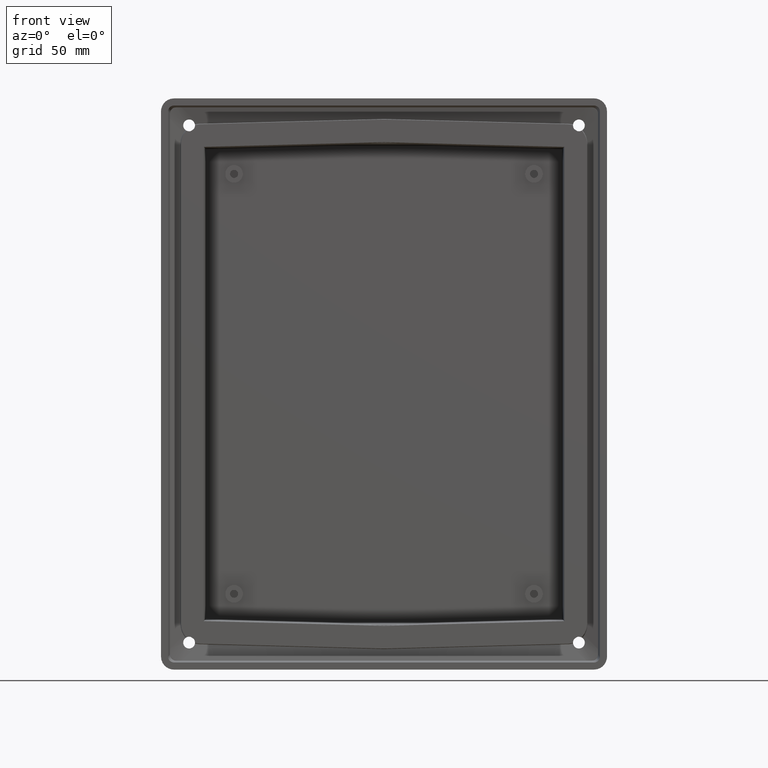
[diagram: clean part render]
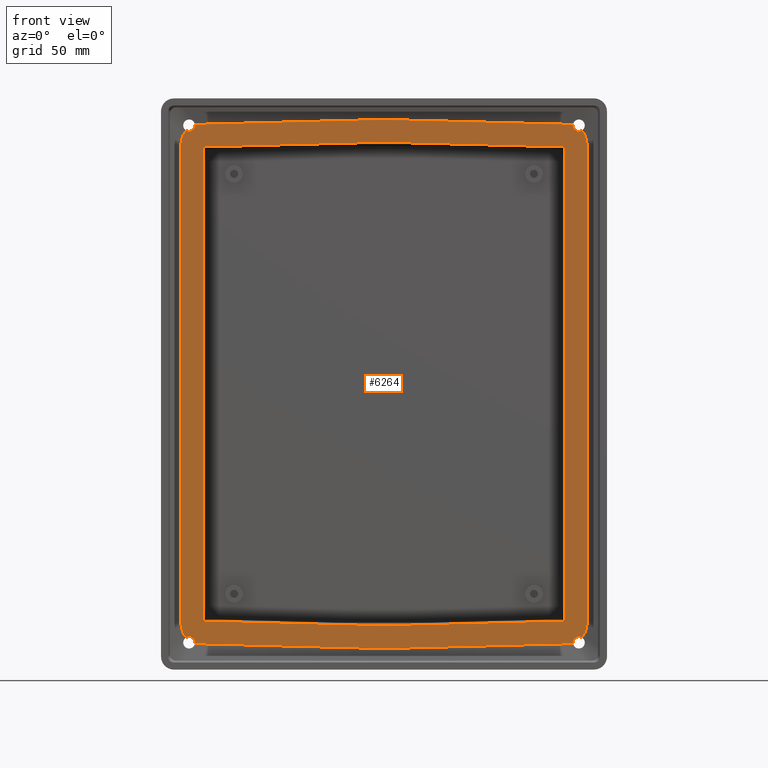
[diagram: same view with one face highlighted and labeled with its STEP entity id]
A machine part, front view. The second image highlights one B-rep face of the part: STEP entity #6264.
In plain terms, the highlighted planar face has unit normal (0, -1, 0).
Its self-contained STEP definition (entity closure, byte-faithful):
#8 = ORIENTED_EDGE ( 'NONE', *, *, #4781, .F. ) ;
#10 = VERTEX_POINT ( 'NONE', #6269 ) ;
#31 = AXIS2_PLACEMENT_3D ( 'NONE', #2380, #2402, #5780 ) ;
#42 = VERTEX_POINT ( 'NONE', #3843 ) ;
#48 = CIRCLE ( 'NONE', #3390, 2.500000000000002200 ) ;
#59 = CIRCLE ( 'NONE', #6068, 0.3000000000000085900 ) ;
#63 = CIRCLE ( 'NONE', #2081, 2.499999999999988500 ) ;
#66 = DIRECTION ( 'NONE',  ( 0.8191520442889851400, 0.0000000000000000000, 0.5735764363510554900 ) ) ;
#77 = EDGE_CURVE ( 'NONE', #6325, #4800, #5679, .T. ) ;
#117 = CARTESIAN_POINT ( 'NONE',  ( -77.77243026756629300, 3.000000000000000000, 109.9732028361552200 ) ) ;
#126 = EDGE_CURVE ( 'NONE', #6217, #339, #325, .T. ) ;
#133 = CIRCLE ( 'NONE', #4534, 2.499999999999988500 ) ;
#135 = CARTESIAN_POINT ( 'NONE',  ( 82.51926223426441700, 2.999999999999999100, -109.4992622342643400 ) ) ;
#149 = VERTEX_POINT ( 'NONE', #3959 ) ;
#150 =( BOUNDED_CURVE ( )  B_SPLINE_CURVE ( 3, ( #658, #3648, #5556, #718 ),
 .UNSPECIFIED., .F., .T. ) 
 B_SPLINE_CURVE_WITH_KNOTS ( ( 4, 4 ),
 ( 3.165045893626587900, 3.913307588947645000 ),
 .UNSPECIFIED. ) 
 CURVE ( )  GEOMETRIC_REPRESENTATION_ITEM ( )  RATIONAL_B_SPLINE_CURVE ( ( 1.000000000000000000, 0.9538837446887115100, 0.9538837446887115100, 1.000000000000000000 ) ) 
 REPRESENTATION_ITEM ( '' )  );
#154 = EDGE_CURVE ( 'NONE', #5908, #6217, #190, .T. ) ;
#171 = EDGE_CURVE ( 'NONE', #1887, #1907, #4381, .T. ) ;
#190 = CIRCLE ( 'NONE', #1356, 2.500000000000002200 ) ;
#191 = VECTOR ( 'NONE', #5643, 1000.000000000000100 ) ;
#207 = VECTOR ( 'NONE', #452, 1000.000000000000100 ) ;
#223 = ORIENTED_EDGE ( 'NONE', *, *, #77, .F. ) ;
#242 = DIRECTION ( 'NONE',  ( 0.0000000000000000000, -1.000000000000000000, 0.0000000000000000000 ) ) ;
#248 = ORIENTED_EDGE ( 'NONE', *, *, #1751, .F. ) ;
#282 = EDGE_CURVE ( 'NONE', #42, #845, #150, .T. ) ;
#294 = CARTESIAN_POINT ( 'NONE',  ( -83.70232339227030100, 3.000000000000000000, 107.2969075179623000 ) ) ;
#307 = CARTESIAN_POINT ( 'NONE',  ( -85.94756079757348700, 2.999999999999999100, -103.7279768682518700 ) ) ;
#323 = VERTEX_POINT ( 'NONE', #6074 ) ;
#325 = CIRCLE ( 'NONE', #3450, 2.500000000000002200 ) ;
#339 = VERTEX_POINT ( 'NONE', #6055 ) ;
#389 = ORIENTED_EDGE ( 'NONE', *, *, #4204, .T. ) ;
#452 = DIRECTION ( 'NONE',  ( -0.9996573249755572600, -0.0000000000000000000, 0.02617694830787313900 ) ) ;
#458 = CARTESIAN_POINT ( 'NONE',  ( -85.94756079757347300, 3.000000000000000000, 101.5811966059138500 ) ) ;
#501 = DIRECTION ( 'NONE',  ( 0.0000000000000000000, 0.0000000000000000000, -1.000000000000000000 ) ) ;
#506 = LINE ( 'NONE', #6321, #3793 ) ;
#517 = EDGE_CURVE ( 'NONE', #5804, #10, #4931, .T. ) ;
#522 = CARTESIAN_POINT ( 'NONE',  ( -0.002742357533569903900, 3.000000000000000000, -102.3969987167160700 ) ) ;
#528 = ORIENTED_EDGE ( 'NONE', *, *, #4667, .F. ) ;
#538 = DIRECTION ( 'NONE',  ( -0.9996573249755572600, -0.0000000000000000000, -0.02617694830787313900 ) ) ;
#594 = ORIENTED_EDGE ( 'NONE', *, *, #979, .F. ) ;
#607 = CARTESIAN_POINT ( 'NONE',  ( 1.387778780781445700E-014, 3.000000000000000000, 112.0097455953867600 ) ) ;
#618 = VERTEX_POINT ( 'NONE', #1556 ) ;
#643 = EDGE_CURVE ( 'NONE', #864, #3248, #1102, .T. ) ;
#647 = VERTEX_POINT ( 'NONE', #3210 ) ;
#649 = CARTESIAN_POINT ( 'NONE',  ( 85.94756079757348700, 3.000000000000000000, 103.7279768682518400 ) ) ;
#658 = CARTESIAN_POINT ( 'NONE',  ( 83.70232339227030100, 3.000000000000000000, -107.2969075179623100 ) ) ;
#683 = CARTESIAN_POINT ( 'NONE',  ( -76.44005613156466000, 3.000000000000000000, 100.3952735909513800 ) ) ;
#703 = VECTOR ( 'NONE', #5968, 1000.000000000000100 ) ;
#718 = CARTESIAN_POINT ( 'NONE',  ( 85.94756079757347300, 3.000000000000000000, -101.5811966059138500 ) ) ;
#721 = CARTESIAN_POINT ( 'NONE',  ( -85.94756079757347300, 3.000000000000000000, 101.5811966059138500 ) ) ;
#735 = CARTESIAN_POINT ( 'NONE',  ( 85.94756079757347300, 3.000000000000000000, -100.5000000000000000 ) ) ;
#739 = DIRECTION ( 'NONE',  ( -0.0000000000000000000, 1.000000000000000000, -0.0000000000000000000 ) ) ;
#752 = CARTESIAN_POINT ( 'NONE',  ( 87.44279848909823700, 3.000000000000000000, -111.2157255801385100 ) ) ;
#764 = ORIENTED_EDGE ( 'NONE', *, *, #3582, .F. ) ;
#790 = VERTEX_POINT ( 'NONE', #5213 ) ;
#801 = CARTESIAN_POINT ( 'NONE',  ( 76.33803618062299300, 3.000000000000000000, -100.5000000000000000 ) ) ;
#805 = CARTESIAN_POINT ( 'NONE',  ( -85.16296574330026200, 2.999999999999999100, -105.7253240096528100 ) ) ;
#806 = LINE ( 'NONE', #4315, #4726 ) ;
#812 = CARTESIAN_POINT ( 'NONE',  ( -85.16296574330026200, 3.000000000000000000, 105.7253240096528400 ) ) ;
#815 = EDGE_CURVE ( 'NONE', #1403, #5666, #4465, .T. ) ;
#834 = CARTESIAN_POINT ( 'NONE',  ( 77.77243026756626400, 3.000000000000000000, -109.9732028361552200 ) ) ;
#845 = VERTEX_POINT ( 'NONE', #3811 ) ;
#864 = VERTEX_POINT ( 'NONE', #2846 ) ;
#875 = CARTESIAN_POINT ( 'NONE',  ( -77.77243026756629300, 3.000000000000000000, 109.9732028361552200 ) ) ;
#884 = AXIS2_PLACEMENT_3D ( 'NONE', #3376, #4289, #5711 ) ;
#926 = DIRECTION ( 'NONE',  ( 0.0000000000000000000, 0.0000000000000000000, -1.000000000000000000 ) ) ;
#933 = VERTEX_POINT ( 'NONE', #965 ) ;
#936 = ORIENTED_EDGE ( 'NONE', *, *, #154, .F. ) ;
#955 = CARTESIAN_POINT ( 'NONE',  ( -82.51926223426441700, 2.999999999999999100, 109.4992622342643400 ) ) ;
#965 = CARTESIAN_POINT ( 'NONE',  ( -1.382357769919018200E-014, 3.000000000000000900, -112.0097455953867600 ) ) ;
#967 = DIRECTION ( 'NONE',  ( 0.0000000000000000000, -1.000000000000000000, 0.0000000000000000000 ) ) ;
#979 = EDGE_CURVE ( 'NONE', #647, #3030, #5736, .T. ) ;
#991 = EDGE_CURVE ( 'NONE', #10, #618, #1782, .T. ) ;
#994 = CARTESIAN_POINT ( 'NONE',  ( 82.51926223426441700, 2.999999999999999100, -106.9992622342643400 ) ) ;
#1010 = CARTESIAN_POINT ( 'NONE',  ( 83.70232339227028700, 3.000000000000001800, 107.2969075179623000 ) ) ;
#1018 = CARTESIAN_POINT ( 'NONE',  ( -82.51926223426441700, 2.999999999999999100, 109.4992622342643400 ) ) ;
#1019 = CARTESIAN_POINT ( 'NONE',  ( 80.02150429958035700, 3.000000000000000900, -109.6051173225820200 ) ) ;
#1071 = EDGE_CURVE ( 'NONE', #1478, #4800, #4614, .T. ) ;
#1084 =( BOUNDED_CURVE ( )  B_SPLINE_CURVE ( 3, ( #834, #4843, #2998, #1019 ),
 .UNSPECIFIED., .F., .F. ) 
 B_SPLINE_CURVE_WITH_KNOTS ( ( 4, 4 ),
 ( 2.369877718231939000, 2.641911150270310800 ),
 .UNSPECIFIED. ) 
 CURVE ( )  GEOMETRIC_REPRESENTATION_ITEM ( )  RATIONAL_B_SPLINE_CURVE ( ( 1.000000000000000000, 0.9938426526332709800, 0.9938426526332709800, 1.000000000000000000 ) ) 
 REPRESENTATION_ITEM ( '' )  );
#1096 = DIRECTION ( 'NONE',  ( 0.0000000000000000000, -1.000000000000000000, 0.0000000000000000000 ) ) ;
#1102 = LINE ( 'NONE', #2612, #4693 ) ;
#1110 = VERTEX_POINT ( 'NONE', #5489 ) ;
#1125 = LINE ( 'NONE', #522, #5765 ) ;
#1142 = CARTESIAN_POINT ( 'NONE',  ( 77.77243026756626400, 3.000000000000000000, -109.9732028361552200 ) ) ;
#1161 = EDGE_CURVE ( 'NONE', #4203, #2621, #5289, .T. ) ;
#1163 = ORIENTED_EDGE ( 'NONE', *, *, #2419, .T. ) ;
#1183 = CARTESIAN_POINT ( 'NONE',  ( -79.29099746779371600, 2.999999999999998700, -109.8297354107430700 ) ) ;
#1206 = LINE ( 'NONE', #6182, #2202 ) ;
#1220 = DIRECTION ( 'NONE',  ( -0.0000000000000000000, 1.000000000000000000, -0.0000000000000000000 ) ) ;
#1236 = CARTESIAN_POINT ( 'NONE',  ( -83.70232339227030100, 2.999999999999999100, -107.2969075179623100 ) ) ;
#1240 = DIRECTION ( 'NONE',  ( 0.0000000000000000000, 0.0000000000000000000, -1.000000000000000000 ) ) ;
#1276 = EDGE_CURVE ( 'NONE', #323, #3099, #5548, .T. ) ;
#1297 = CARTESIAN_POINT ( 'NONE',  ( -82.51926223426441700, 2.999999999999999100, -106.9992622342643200 ) ) ;
#1302 = CARTESIAN_POINT ( 'NONE',  ( -80.60552486977377400, 2.999999999999999100, 107.9094165500067500 ) ) ;
#1308 = CARTESIAN_POINT ( 'NONE',  ( -83.70232339227030100, 2.999999999999999100, -107.2969075179623100 ) ) ;
#1316 = ORIENTED_EDGE ( 'NONE', *, *, #282, .T. ) ;
#1356 = AXIS2_PLACEMENT_3D ( 'NONE', #955, #2004, #2503 ) ;
#1363 = DIRECTION ( 'NONE',  ( 0.0000000000000000000, 0.0000000000000000000, -1.000000000000000000 ) ) ;
#1372 = DIRECTION ( 'NONE',  ( 0.0000000000000000000, 0.0000000000000000000, -1.000000000000000000 ) ) ;
#1379 = DIRECTION ( 'NONE',  ( 0.0000000000000000000, 0.0000000000000000000, -1.000000000000000000 ) ) ;
#1389 = EDGE_CURVE ( 'NONE', #4438, #864, #4333, .T. ) ;
#1403 = VERTEX_POINT ( 'NONE', #3682 ) ;
#1411 = ORIENTED_EDGE ( 'NONE', *, *, #1389, .T. ) ;
#1417 = ORIENTED_EDGE ( 'NONE', *, *, #4468, .T. ) ;
#1428 = CARTESIAN_POINT ( 'NONE',  ( 82.51926223426441700, 2.999999999999999100, 109.4992622342643400 ) ) ;
#1434 = CARTESIAN_POINT ( 'NONE',  ( -85.94756079757347300, 3.000000000000000000, -101.5811966059138000 ) ) ;
#1435 = DIRECTION ( 'NONE',  ( 0.0000000000000000000, -1.000000000000000000, 0.0000000000000000000 ) ) ;
#1454 = AXIS2_PLACEMENT_3D ( 'NONE', #2796, #6187, #926 ) ;
#1461 = CARTESIAN_POINT ( 'NONE',  ( -80.77759780067910400, 2.999999999999999100, -108.1551621632934500 ) ) ;
#1478 = VERTEX_POINT ( 'NONE', #875 ) ;
#1504 = EDGE_CURVE ( 'NONE', #1800, #4746, #806, .T. ) ;
#1555 = CIRCLE ( 'NONE', #3328, 0.2999999999999947200 ) ;
#1556 = CARTESIAN_POINT ( 'NONE',  ( -80.54009810519019700, 2.999999999999999100, -107.9718757899792500 ) ) ;
#1562 = EDGE_CURVE ( 'NONE', #2621, #4599, #3345, .T. ) ;
#1576 = ORIENTED_EDGE ( 'NONE', *, *, #5483, .T. ) ;
#1581 = DIRECTION ( 'NONE',  ( 0.8191520442889885800, 0.0000000000000000000, 0.5735764363510507100 ) ) ;
#1610 = CARTESIAN_POINT ( 'NONE',  ( -80.02150429958035700, 2.999999999999595400, -109.6051173225820200 ) ) ;
#1638 = DIRECTION ( 'NONE',  ( -0.0000000000000000000, 1.000000000000000000, -0.0000000000000000000 ) ) ;
#1664 = DIRECTION ( 'NONE',  ( 9.251858538543134400E-014, 0.0000000000000000000, -1.000000000000000000 ) ) ;
#1685 = ORIENTED_EDGE ( 'NONE', *, *, #6202, .T. ) ;
#1751 = EDGE_CURVE ( 'NONE', #323, #6037, #133, .T. ) ;
#1758 =( BOUNDED_CURVE ( )  B_SPLINE_CURVE ( 3, ( #5650, #649, #4595, #6083 ),
 .UNSPECIFIED., .F., .F. ) 
 B_SPLINE_CURVE_WITH_KNOTS ( ( 4, 4 ),
 ( 2.369877718231934600, 3.118139413552999200 ),
 .UNSPECIFIED. ) 
 CURVE ( )  GEOMETRIC_REPRESENTATION_ITEM ( )  RATIONAL_B_SPLINE_CURVE ( ( 1.000000000000000000, 0.9538837446887105100, 0.9538837446887105100, 1.000000000000000000 ) ) 
 REPRESENTATION_ITEM ( '' )  );
#1782 = CIRCLE ( 'NONE', #3279, 0.3000000000000085900 ) ;
#1797 = EDGE_CURVE ( 'NONE', #339, #647, #3496, .T. ) ;
#1800 = VERTEX_POINT ( 'NONE', #2886 ) ;
#1829 = DIRECTION ( 'NONE',  ( 0.9996573249755572600, -0.0000000000000000000, -0.02617694830787313900 ) ) ;
#1853 = ORIENTED_EDGE ( 'NONE', *, *, #1562, .F. ) ;
#1866 = VECTOR ( 'NONE', #3130, 1000.000000000000100 ) ;
#1871 = ORIENTED_EDGE ( 'NONE', *, *, #3801, .F. ) ;
#1887 = VERTEX_POINT ( 'NONE', #1434 ) ;
#1907 = VERTEX_POINT ( 'NONE', #458 ) ;
#1954 = CARTESIAN_POINT ( 'NONE',  ( 80.54009810519015400, 2.999999999999999100, 107.9718757899792800 ) ) ;
#1955 = EDGE_CURVE ( 'NONE', #3525, #6058, #1758, .T. ) ;
#1977 = CARTESIAN_POINT ( 'NONE',  ( -76.44005613156466000, 3.000000000000000000, -100.3952735909513800 ) ) ;
#1987 = DIRECTION ( 'NONE',  ( 0.0000000000000000000, 0.0000000000000000000, -1.000000000000000000 ) ) ;
#2004 = DIRECTION ( 'NONE',  ( 0.0000000000000000000, -1.000000000000000000, 0.0000000000000000000 ) ) ;
#2056 = CARTESIAN_POINT ( 'NONE',  ( 76.33803618062299300, 3.000000000000000900, -100.3979450773852300 ) ) ;
#2081 = AXIS2_PLACEMENT_3D ( 'NONE', #2226, #5054, #5696 ) ;
#2129 = CARTESIAN_POINT ( 'NONE',  ( -82.51926223426441700, 2.999999999999999100, -109.4992622342643400 ) ) ;
#2143 = EDGE_CURVE ( 'NONE', #4746, #149, #5023, .T. ) ;
#2176 = VECTOR ( 'NONE', #5378, 1000.000000000000100 ) ;
#2187 =( BOUNDED_CURVE ( )  B_SPLINE_CURVE ( 3, ( #294, #812, #3715, #721 ),
 .UNSPECIFIED., .F., .F. ) 
 B_SPLINE_CURVE_WITH_KNOTS ( ( 4, 4 ),
 ( 3.165045893626588400, 3.913307588947645000 ),
 .UNSPECIFIED. ) 
 CURVE ( )  GEOMETRIC_REPRESENTATION_ITEM ( )  RATIONAL_B_SPLINE_CURVE ( ( 1.000000000000000000, 0.9538837446887115100, 0.9538837446887115100, 1.000000000000000000 ) ) 
 REPRESENTATION_ITEM ( '' )  );
#2202 = VECTOR ( 'NONE', #1829, 1000.000000000000100 ) ;
#2219 = CARTESIAN_POINT ( 'NONE',  ( -77.77243026756629300, 3.000000000000000000, -109.9732028361552200 ) ) ;
#2226 = CARTESIAN_POINT ( 'NONE',  ( 82.51926223426441700, 2.999999999999999100, 109.4992622342643400 ) ) ;
#2256 = ORIENTED_EDGE ( 'NONE', *, *, #3713, .F. ) ;
#2274 = VERTEX_POINT ( 'NONE', #994 ) ;
#2287 = CARTESIAN_POINT ( 'NONE',  ( -80.54009810519019700, 2.999999999999999100, 107.9718757899792500 ) ) ;
#2324 = ORIENTED_EDGE ( 'NONE', *, *, #643, .T. ) ;
#2358 = CARTESIAN_POINT ( 'NONE',  ( -83.70232339227030100, 3.000000000000000000, 107.2969075179623000 ) ) ;
#2380 = CARTESIAN_POINT ( 'NONE',  ( -81.85190563517538500, 2.999999999999999100, 107.4029237192214200 ) ) ;
#2386 = ORIENTED_EDGE ( 'NONE', *, *, #1955, .T. ) ;
#2402 = DIRECTION ( 'NONE',  ( 0.0000000000000000000, -1.000000000000000000, 0.0000000000000000000 ) ) ;
#2405 = EDGE_CURVE ( 'NONE', #618, #1110, #48, .T. ) ;
#2407 = VERTEX_POINT ( 'NONE', #607 ) ;
#2419 = EDGE_CURVE ( 'NONE', #5843, #2274, #5926, .T. ) ;
#2427 = CARTESIAN_POINT ( 'NONE',  ( 80.02150429958035700, 3.000000000000000900, -109.6051173225820200 ) ) ;
#2501 = DIRECTION ( 'NONE',  ( 0.0000000000000000000, 0.0000000000000000000, -1.000000000000000000 ) ) ;
#2503 = DIRECTION ( 'NONE',  ( 0.0000000000000000000, 0.0000000000000000000, -1.000000000000000000 ) ) ;
#2548 = CARTESIAN_POINT ( 'NONE',  ( 81.67983270427004100, 2.999999999999999100, -107.1571781059347200 ) ) ;
#2559 = CARTESIAN_POINT ( 'NONE',  ( 80.77759780067910400, 2.999999999999999100, 108.1551621632934500 ) ) ;
#2612 = CARTESIAN_POINT ( 'NONE',  ( 83.63994723222874900, 3.000000000000000000, -105.7846911377036600 ) ) ;
#2620 = CARTESIAN_POINT ( 'NONE',  ( 80.02150429958035700, 2.999999999999999100, 109.6051173225820000 ) ) ;
#2621 = VERTEX_POINT ( 'NONE', #3722 ) ;
#2637 = ORIENTED_EDGE ( 'NONE', *, *, #2405, .T. ) ;
#2639 = LINE ( 'NONE', #5631, #191 ) ;
#2658 = VECTOR ( 'NONE', #4597, 1000.000000000000100 ) ;
#2690 = EDGE_CURVE ( 'NONE', #1110, #6281, #3065, .T. ) ;
#2715 = ORIENTED_EDGE ( 'NONE', *, *, #4324, .T. ) ;
#2725 = CIRCLE ( 'NONE', #3118, 0.3000000000000085900 ) ;
#2745 = ORIENTED_EDGE ( 'NONE', *, *, #815, .T. ) ;
#2787 = LINE ( 'NONE', #4510, #703 ) ;
#2792 = ORIENTED_EDGE ( 'NONE', *, *, #1276, .T. ) ;
#2796 = CARTESIAN_POINT ( 'NONE',  ( -82.51926223426441700, 2.999999999999999100, -109.4992622342643400 ) ) ;
#2811 = CIRCLE ( 'NONE', #884, 2.500000000000002200 ) ;
#2846 = CARTESIAN_POINT ( 'NONE',  ( 80.60552486977374500, 2.999999999999999100, -107.9094165500067800 ) ) ;
#2850 = ORIENTED_EDGE ( 'NONE', *, *, #1071, .T. ) ;
#2886 = CARTESIAN_POINT ( 'NONE',  ( -76.33803618062297900, 3.000000000000000000, -100.3979450773852400 ) ) ;
#2892 = CARTESIAN_POINT ( 'NONE',  ( -79.29099746779370200, 2.999999999999999600, 109.8297354107430700 ) ) ;
#2913 = CARTESIAN_POINT ( 'NONE',  ( -82.51926223426441700, 2.999999999999999100, 109.4992622342643400 ) ) ;
#2917 = CARTESIAN_POINT ( 'NONE',  ( 77.77243026756626400, 3.000000000000000000, 109.9732028361552200 ) ) ;
#2981 = DIRECTION ( 'NONE',  ( 0.0000000000000000000, 0.0000000000000000000, -1.000000000000000000 ) ) ;
#2992 = CARTESIAN_POINT ( 'NONE',  ( -76.69160416072580200, 3.000000000000000000, -110.0015052638188700 ) ) ;
#2998 = CARTESIAN_POINT ( 'NONE',  ( 79.29099746779370200, 3.000000000000000900, -109.8297354107430700 ) ) ;
#3012 = DIRECTION ( 'NONE',  ( 0.0000000000000000000, 0.0000000000000000000, -1.000000000000000000 ) ) ;
#3023 = VECTOR ( 'NONE', #66, 1000.000000000000100 ) ;
#3030 = VERTEX_POINT ( 'NONE', #1302 ) ;
#3053 = CIRCLE ( 'NONE', #3827, 2.499999999999988500 ) ;
#3059 = CIRCLE ( 'NONE', #3579, 0.3000000000000085900 ) ;
#3065 =( BOUNDED_CURVE ( )  B_SPLINE_CURVE ( 3, ( #1610, #1183, #5207, #3981 ),
 .UNSPECIFIED., .F., .F. ) 
 B_SPLINE_CURVE_WITH_KNOTS ( ( 4, 4 ),
 ( 3.641274156909275000, 3.913307588947643600 ),
 .UNSPECIFIED. ) 
 CURVE ( )  GEOMETRIC_REPRESENTATION_ITEM ( )  RATIONAL_B_SPLINE_CURVE ( ( 1.000000000000000000, 0.9938426526332711000, 0.9938426526332711000, 1.000000000000000000 ) ) 
 REPRESENTATION_ITEM ( '' )  );
#3095 = CARTESIAN_POINT ( 'NONE',  ( 79.29099746779370200, 3.000000000000000400, 109.8297354107430700 ) ) ;
#3099 = VERTEX_POINT ( 'NONE', #2917 ) ;
#3107 = LINE ( 'NONE', #2992, #4932 ) ;
#3118 = AXIS2_PLACEMENT_3D ( 'NONE', #5915, #4899, #2981 ) ;
#3130 = DIRECTION ( 'NONE',  ( 0.9996573249755572600, 0.0000000000000000000, 0.02617694830787314600 ) ) ;
#3136 = CARTESIAN_POINT ( 'NONE',  ( 77.77243026756626400, 3.000000000000000000, 109.9732028361552200 ) ) ;
#3210 = CARTESIAN_POINT ( 'NONE',  ( -81.67983270427005500, 2.999999999999999100, 107.1571781059346900 ) ) ;
#3248 = VERTEX_POINT ( 'NONE', #2548 ) ;
#3279 = AXIS2_PLACEMENT_3D ( 'NONE', #1461, #5397, #5865 ) ;
#3318 = CARTESIAN_POINT ( 'NONE',  ( 80.54009810519015400, 2.999999999999999100, -107.9718757899792800 ) ) ;
#3328 = AXIS2_PLACEMENT_3D ( 'NONE', #4588, #1638, #1664 ) ;
#3345 = CIRCLE ( 'NONE', #5437, 2.499999999999988500 ) ;
#3376 = CARTESIAN_POINT ( 'NONE',  ( -82.51926223426441700, 2.999999999999999100, -109.4992622342643400 ) ) ;
#3390 = AXIS2_PLACEMENT_3D ( 'NONE', #2129, #6279, #1363 ) ;
#3450 = AXIS2_PLACEMENT_3D ( 'NONE', #1018, #1435, #5346 ) ;
#3477 = LINE ( 'NONE', #4579, #1866 ) ;
#3483 = ORIENTED_EDGE ( 'NONE', *, *, #5507, .F. ) ;
#3496 = CIRCLE ( 'NONE', #31, 0.3000000000000085900 ) ;
#3498 = CARTESIAN_POINT ( 'NONE',  ( 81.85190563517538500, 2.999999999999999100, 107.4029237192214200 ) ) ;
#3514 = CARTESIAN_POINT ( 'NONE',  ( -80.02150429958035700, 2.999999999999597700, 109.6051173225820000 ) ) ;
#3523 = DIRECTION ( 'NONE',  ( 0.0000000000000000000, -1.000000000000000000, 0.0000000000000000000 ) ) ;
#3525 = VERTEX_POINT ( 'NONE', #4287 ) ;
#3554 = CARTESIAN_POINT ( 'NONE',  ( -81.76090246257233200, 2.999999999999999100, -107.1170593762610100 ) ) ;
#3569 = CARTESIAN_POINT ( 'NONE',  ( 78.53666141467874700, 3.000000000000000400, 109.9531907392762000 ) ) ;
#3579 = AXIS2_PLACEMENT_3D ( 'NONE', #2559, #3523, #3012 ) ;
#3582 = EDGE_CURVE ( 'NONE', #933, #6281, #3107, .T. ) ;
#3587 = AXIS2_PLACEMENT_3D ( 'NONE', #3856, #4309, #1379 ) ;
#3642 = AXIS2_PLACEMENT_3D ( 'NONE', #2913, #4842, #1987 ) ;
#3648 = CARTESIAN_POINT ( 'NONE',  ( 85.16296574330023400, 3.000000000000000900, -105.7253240096528200 ) ) ;
#3673 = ORIENTED_EDGE ( 'NONE', *, *, #6290, .F. ) ;
#3682 = CARTESIAN_POINT ( 'NONE',  ( 76.33803618062296400, 3.000000000000000000, 100.3979450773852300 ) ) ;
#3694 = ORIENTED_EDGE ( 'NONE', *, *, #991, .T. ) ;
#3700 = ORIENTED_EDGE ( 'NONE', *, *, #5427, .T. ) ;
#3713 = EDGE_CURVE ( 'NONE', #2407, #3099, #2787, .T. ) ;
#3715 = CARTESIAN_POINT ( 'NONE',  ( -85.94756079757348700, 3.000000000000000000, 103.7279768682518900 ) ) ;
#3722 = CARTESIAN_POINT ( 'NONE',  ( 81.76090246257230400, 2.999999999999999100, 107.1170593762610400 ) ) ;
#3723 = ORIENTED_EDGE ( 'NONE', *, *, #4969, .T. ) ;
#3771 = DIRECTION ( 'NONE',  ( 1.387778780781406000E-013, 0.0000000000000000000, -1.000000000000000000 ) ) ;
#3779 = EDGE_CURVE ( 'NONE', #1478, #2407, #3477, .T. ) ;
#3793 = VECTOR ( 'NONE', #4929, 1000.000000000000000 ) ;
#3801 = EDGE_CURVE ( 'NONE', #6203, #933, #2639, .T. ) ;
#3811 = CARTESIAN_POINT ( 'NONE',  ( 85.94756079757347300, 3.000000000000000000, -101.5811966059138500 ) ) ;
#3827 = AXIS2_PLACEMENT_3D ( 'NONE', #135, #5999, #5525 ) ;
#3843 = CARTESIAN_POINT ( 'NONE',  ( 83.70232339227030100, 3.000000000000000000, -107.2969075179623100 ) ) ;
#3853 = ORIENTED_EDGE ( 'NONE', *, *, #171, .F. ) ;
#3856 = CARTESIAN_POINT ( 'NONE',  ( 82.51926223426441700, 2.999999999999999100, -109.4992622342643400 ) ) ;
#3861 = EDGE_LOOP ( 'NONE', ( #2745, #4901, #3723, #4518, #5337, #1417 ) ) ;
#3892 = DIRECTION ( 'NONE',  ( 0.0000000000000000000, 0.0000000000000000000, 1.000000000000000000 ) ) ;
#3959 = CARTESIAN_POINT ( 'NONE',  ( 0.0000000000000000000, 3.000000000000000000, 102.3969269055567800 ) ) ;
#3981 = CARTESIAN_POINT ( 'NONE',  ( -77.77243026756629300, 3.000000000000000000, -109.9732028361552200 ) ) ;
#4018 = CARTESIAN_POINT ( 'NONE',  ( -76.33803618062299300, 3.000000000000000000, 100.3979450773852300 ) ) ;
#4058 = CARTESIAN_POINT ( 'NONE',  ( 82.51926223426441700, 2.999999999999999100, 106.9992622342643400 ) ) ;
#4161 = VERTEX_POINT ( 'NONE', #3554 ) ;
#4165 = CARTESIAN_POINT ( 'NONE',  ( -78.53666141467873300, 2.999999999999999600, 109.9531907392762000 ) ) ;
#4203 = VERTEX_POINT ( 'NONE', #4629 ) ;
#4204 = EDGE_CURVE ( 'NONE', #3248, #5843, #1555, .T. ) ;
#4233 = CARTESIAN_POINT ( 'NONE',  ( -81.85190563517538500, 2.999999999999999100, -107.4029237192214200 ) ) ;
#4248 = ORIENTED_EDGE ( 'NONE', *, *, #4900, .T. ) ;
#4287 = CARTESIAN_POINT ( 'NONE',  ( 85.94756079757347300, 3.000000000000000000, 101.5811966059137700 ) ) ;
#4288 = DIRECTION ( 'NONE',  ( -0.0000000000000000000, -0.0000000000000000000, 1.000000000000000000 ) ) ;
#4289 = DIRECTION ( 'NONE',  ( -0.0000000000000000000, 1.000000000000000000, -0.0000000000000000000 ) ) ;
#4309 = DIRECTION ( 'NONE',  ( -0.0000000000000000000, 1.000000000000000000, -0.0000000000000000000 ) ) ;
#4315 = CARTESIAN_POINT ( 'NONE',  ( -76.33803618062299300, 3.000000000000000000, 100.5000000000000000 ) ) ;
#4324 = EDGE_CURVE ( 'NONE', #5908, #1907, #2187, .T. ) ;
#4329 = FACE_OUTER_BOUND ( 'NONE', #5237, .T. ) ;
#4333 = CIRCLE ( 'NONE', #5972, 0.3000000000000085900 ) ;
#4381 = LINE ( 'NONE', #4926, #4705 ) ;
#4389 = VERTEX_POINT ( 'NONE', #1297 ) ;
#4402 = CARTESIAN_POINT ( 'NONE',  ( -70.79854691410105300, 3.000000000000000000, 114.7763364416254600 ) ) ;
#4412 = ORIENTED_EDGE ( 'NONE', *, *, #1161, .F. ) ;
#4421 = DIRECTION ( 'NONE',  ( -0.9996573249755572600, 0.0000000000000000000, 0.02617694830787314600 ) ) ;
#4422 = CARTESIAN_POINT ( 'NONE',  ( 33.71004972890659700, 3.000000000000000000, -187.9540436187791700 ) ) ;
#4438 = VERTEX_POINT ( 'NONE', #3318 ) ;
#4465 = LINE ( 'NONE', #801, #4849 ) ;
#4468 = EDGE_CURVE ( 'NONE', #149, #1403, #1206, .T. ) ;
#4510 = CARTESIAN_POINT ( 'NONE',  ( 0.2488056716275773800, 3.000000000000000000, 112.0032303895835500 ) ) ;
#4518 = ORIENTED_EDGE ( 'NONE', *, *, #1504, .T. ) ;
#4534 = AXIS2_PLACEMENT_3D ( 'NONE', #4806, #6231, #1372 ) ;
#4556 = VERTEX_POINT ( 'NONE', #2427 ) ;
#4579 = CARTESIAN_POINT ( 'NONE',  ( -76.69160416072580200, 3.000000000000000000, 110.0015052638188700 ) ) ;
#4581 =( BOUNDED_CURVE ( )  B_SPLINE_CURVE ( 3, ( #5673, #307, #805, #1308 ),
 .UNSPECIFIED., .F., .F. ) 
 B_SPLINE_CURVE_WITH_KNOTS ( ( 4, 4 ),
 ( 2.369877718231934600, 3.118139413552997000 ),
 .UNSPECIFIED. ) 
 CURVE ( )  GEOMETRIC_REPRESENTATION_ITEM ( )  RATIONAL_B_SPLINE_CURVE ( ( 1.000000000000000000, 0.9538837446887107300, 0.9538837446887107300, 1.000000000000000000 ) ) 
 REPRESENTATION_ITEM ( '' )  );
#4584 = CARTESIAN_POINT ( 'NONE',  ( -82.51926223426441700, 2.999999999999999100, 106.9992622342643200 ) ) ;
#4588 = CARTESIAN_POINT ( 'NONE',  ( 81.85190563517538500, 2.999999999999999100, -107.4029237192214200 ) ) ;
#4594 = ORIENTED_EDGE ( 'NONE', *, *, #126, .F. ) ;
#4595 = CARTESIAN_POINT ( 'NONE',  ( 85.16296574330026200, 3.000000000000000000, 105.7253240096528100 ) ) ;
#4597 = DIRECTION ( 'NONE',  ( 0.9996573249755572600, -0.0000000000000000000, 0.02617694830787313900 ) ) ;
#4599 = VERTEX_POINT ( 'NONE', #4058 ) ;
#4614 =( BOUNDED_CURVE ( )  B_SPLINE_CURVE ( 3, ( #117, #4165, #2892, #3514 ),
 .UNSPECIFIED., .F., .T. ) 
 B_SPLINE_CURVE_WITH_KNOTS ( ( 4, 4 ),
 ( 2.369877718231940800, 2.641911150270309400 ),
 .UNSPECIFIED. ) 
 CURVE ( )  GEOMETRIC_REPRESENTATION_ITEM ( )  RATIONAL_B_SPLINE_CURVE ( ( 1.000000000000000000, 0.9938426526332711000, 0.9938426526332711000, 1.000000000000000000 ) ) 
 REPRESENTATION_ITEM ( '' )  );
#4629 = CARTESIAN_POINT ( 'NONE',  ( 81.67983270427004100, 2.999999999999999100, 107.1571781059347200 ) ) ;
#4645 = PLANE ( 'NONE',  #5587 ) ;
#4667 = EDGE_CURVE ( 'NONE', #6037, #790, #3059, .T. ) ;
#4693 = VECTOR ( 'NONE', #1581, 1000.000000000000000 ) ;
#4705 = VECTOR ( 'NONE', #3892, 1000.000000000000000 ) ;
#4714 = DIRECTION ( 'NONE',  ( 0.0000000000000000000, 0.0000000000000000000, -1.000000000000000000 ) ) ;
#4726 = VECTOR ( 'NONE', #4288, 1000.000000000000000 ) ;
#4730 = CIRCLE ( 'NONE', #5829, 2.499999999999988500 ) ;
#4746 = VERTEX_POINT ( 'NONE', #4018 ) ;
#4781 = EDGE_CURVE ( 'NONE', #4599, #6058, #63, .T. ) ;
#4785 = ORIENTED_EDGE ( 'NONE', *, *, #3779, .F. ) ;
#4800 = VERTEX_POINT ( 'NONE', #6111 ) ;
#4806 = CARTESIAN_POINT ( 'NONE',  ( 82.51926223426441700, 2.999999999999999100, 109.4992622342643400 ) ) ;
#4821 = VERTEX_POINT ( 'NONE', #1236 ) ;
#4842 = DIRECTION ( 'NONE',  ( 0.0000000000000000000, -1.000000000000000000, 0.0000000000000000000 ) ) ;
#4843 = CARTESIAN_POINT ( 'NONE',  ( 78.53666141467874700, 3.000000000000000900, -109.9531907392762100 ) ) ;
#4849 = VECTOR ( 'NONE', #5667, 1000.000000000000000 ) ;
#4865 = EDGE_CURVE ( 'NONE', #1887, #4821, #4581, .T. ) ;
#4899 = DIRECTION ( 'NONE',  ( 0.0000000000000000000, -1.000000000000000000, 0.0000000000000000000 ) ) ;
#4900 = EDGE_CURVE ( 'NONE', #4389, #4161, #2811, .T. ) ;
#4901 = ORIENTED_EDGE ( 'NONE', *, *, #6066, .T. ) ;
#4926 = CARTESIAN_POINT ( 'NONE',  ( -85.94756079757347300, 3.000000000000000000, 100.5000000000000000 ) ) ;
#4929 = DIRECTION ( 'NONE',  ( 0.8191520442889885800, 0.0000000000000000000, -0.5735764363510507100 ) ) ;
#4931 = LINE ( 'NONE', #4422, #2176 ) ;
#4932 = VECTOR ( 'NONE', #4421, 1000.000000000000100 ) ;
#4969 = EDGE_CURVE ( 'NONE', #6057, #1800, #6159, .T. ) ;
#5023 = LINE ( 'NONE', #683, #2658 ) ;
#5026 = VECTOR ( 'NONE', #6070, 1000.000000000000000 ) ;
#5054 = DIRECTION ( 'NONE',  ( 0.0000000000000000000, -1.000000000000000000, 0.0000000000000000000 ) ) ;
#5064 = ORIENTED_EDGE ( 'NONE', *, *, #517, .T. ) ;
#5095 = ORIENTED_EDGE ( 'NONE', *, *, #5825, .T. ) ;
#5103 = CARTESIAN_POINT ( 'NONE',  ( 82.51926223426441700, 2.999999999999999100, -109.4992622342643400 ) ) ;
#5116 = DIRECTION ( 'NONE',  ( 0.0000000000000000000, -0.0000000000000000000, -1.000000000000000000 ) ) ;
#5124 = ORIENTED_EDGE ( 'NONE', *, *, #5777, .T. ) ;
#5207 = CARTESIAN_POINT ( 'NONE',  ( -78.53666141467873300, 2.999999999999998700, -109.9531907392762000 ) ) ;
#5213 = CARTESIAN_POINT ( 'NONE',  ( 80.60552486977374500, 2.999999999999999100, 107.9094165500067800 ) ) ;
#5219 = CARTESIAN_POINT ( 'NONE',  ( 81.76090246257230400, 2.999999999999999100, -107.1170593762610400 ) ) ;
#5237 = EDGE_LOOP ( 'NONE', ( #3694, #2637, #5981, #764, #1871, #1576, #1685, #1411, #2324, #389, #1163, #5124, #1316, #3673, #2386, #8, #1853, #4412, #3483, #528, #248, #2792, #2256, #4785, #2850, #223, #5989, #594, #6291, #4594, #936, #2715, #3853, #6097, #3700, #4248, #5095, #5064 ) ) ;
#5289 = CIRCLE ( 'NONE', #6080, 0.2999999999999947200 ) ;
#5337 = ORIENTED_EDGE ( 'NONE', *, *, #2143, .T. ) ;
#5346 = DIRECTION ( 'NONE',  ( 0.0000000000000000000, 0.0000000000000000000, -1.000000000000000000 ) ) ;
#5378 = DIRECTION ( 'NONE',  ( 0.8191520442889851400, 0.0000000000000000000, -0.5735764363510554900 ) ) ;
#5397 = DIRECTION ( 'NONE',  ( -0.0000000000000000000, 1.000000000000000000, -0.0000000000000000000 ) ) ;
#5427 = EDGE_CURVE ( 'NONE', #4821, #4389, #5938, .T. ) ;
#5437 = AXIS2_PLACEMENT_3D ( 'NONE', #1428, #967, #501 ) ;
#5440 = CARTESIAN_POINT ( 'NONE',  ( 0.0000000000000000000, 3.000000000000000000, -102.3969269055567800 ) ) ;
#5474 = LINE ( 'NONE', #735, #5026 ) ;
#5483 = EDGE_CURVE ( 'NONE', #6203, #4556, #1084, .T. ) ;
#5489 = CARTESIAN_POINT ( 'NONE',  ( -80.02150429958035700, 2.999999999999595400, -109.6051173225820200 ) ) ;
#5507 = EDGE_CURVE ( 'NONE', #790, #4203, #506, .T. ) ;
#5525 = DIRECTION ( 'NONE',  ( -5.551115123125808700E-015, 0.0000000000000000000, -1.000000000000000000 ) ) ;
#5548 =( BOUNDED_CURVE ( )  B_SPLINE_CURVE ( 3, ( #2620, #3095, #3569, #3136 ),
 .UNSPECIFIED., .F., .T. ) 
 B_SPLINE_CURVE_WITH_KNOTS ( ( 4, 4 ),
 ( 3.641274156909275500, 3.913307588947647200 ),
 .UNSPECIFIED. ) 
 CURVE ( )  GEOMETRIC_REPRESENTATION_ITEM ( )  RATIONAL_B_SPLINE_CURVE ( ( 1.000000000000000000, 0.9938426526332709800, 0.9938426526332709800, 1.000000000000000000 ) ) 
 REPRESENTATION_ITEM ( '' )  );
#5556 = CARTESIAN_POINT ( 'NONE',  ( 85.94756079757347300, 3.000000000000000900, -103.7279768682519000 ) ) ;
#5587 = AXIS2_PLACEMENT_3D ( 'NONE', #752, #242, #5116 ) ;
#5617 = CARTESIAN_POINT ( 'NONE',  ( 80.77759780067910400, 2.999999999999999100, -108.1551621632934500 ) ) ;
#5631 = CARTESIAN_POINT ( 'NONE',  ( 0.2488056716275773800, 3.000000000000000000, -112.0032303895835500 ) ) ;
#5639 = DIRECTION ( 'NONE',  ( -0.0000000000000000000, 1.000000000000000000, -0.0000000000000000000 ) ) ;
#5643 = DIRECTION ( 'NONE',  ( -0.9996573249755572600, 0.0000000000000000000, -0.02617694830787314600 ) ) ;
#5650 = CARTESIAN_POINT ( 'NONE',  ( 85.94756079757347300, 3.000000000000000000, 101.5811966059137700 ) ) ;
#5666 = VERTEX_POINT ( 'NONE', #2056 ) ;
#5667 = DIRECTION ( 'NONE',  ( -0.0000000000000000000, -0.0000000000000000000, -1.000000000000000000 ) ) ;
#5673 = CARTESIAN_POINT ( 'NONE',  ( -85.94756079757347300, 3.000000000000000000, -101.5811966059138000 ) ) ;
#5675 = CARTESIAN_POINT ( 'NONE',  ( -81.67983270427005500, 2.999999999999999100, -107.1571781059346900 ) ) ;
#5679 = CIRCLE ( 'NONE', #3642, 2.500000000000002200 ) ;
#5696 = DIRECTION ( 'NONE',  ( 0.0000000000000000000, 0.0000000000000000000, -1.000000000000000000 ) ) ;
#5711 = DIRECTION ( 'NONE',  ( -1.665334536937733200E-014, 0.0000000000000000000, -1.000000000000000000 ) ) ;
#5736 = LINE ( 'NONE', #4402, #3023 ) ;
#5765 = VECTOR ( 'NONE', #538, 1000.000000000000100 ) ;
#5777 = EDGE_CURVE ( 'NONE', #2274, #42, #4730, .T. ) ;
#5780 = DIRECTION ( 'NONE',  ( 0.0000000000000000000, 0.0000000000000000000, -1.000000000000000000 ) ) ;
#5804 = VERTEX_POINT ( 'NONE', #5675 ) ;
#5825 = EDGE_CURVE ( 'NONE', #4161, #5804, #59, .T. ) ;
#5829 = AXIS2_PLACEMENT_3D ( 'NONE', #5103, #739, #1240 ) ;
#5843 = VERTEX_POINT ( 'NONE', #5219 ) ;
#5865 = DIRECTION ( 'NONE',  ( 9.251858538542706500E-014, 0.0000000000000000000, -1.000000000000000000 ) ) ;
#5908 = VERTEX_POINT ( 'NONE', #2358 ) ;
#5915 = CARTESIAN_POINT ( 'NONE',  ( -80.77759780067910400, 2.999999999999999100, 108.1551621632934500 ) ) ;
#5926 = CIRCLE ( 'NONE', #3587, 2.499999999999988500 ) ;
#5938 = CIRCLE ( 'NONE', #1454, 2.500000000000002200 ) ;
#5968 = DIRECTION ( 'NONE',  ( 0.9996573249755572600, 0.0000000000000000000, -0.02617694830787314600 ) ) ;
#5972 = AXIS2_PLACEMENT_3D ( 'NONE', #5617, #1220, #4714 ) ;
#5981 = ORIENTED_EDGE ( 'NONE', *, *, #2690, .T. ) ;
#5989 = ORIENTED_EDGE ( 'NONE', *, *, #6042, .F. ) ;
#5999 = DIRECTION ( 'NONE',  ( -0.0000000000000000000, 1.000000000000000000, -0.0000000000000000000 ) ) ;
#6037 = VERTEX_POINT ( 'NONE', #1954 ) ;
#6042 = EDGE_CURVE ( 'NONE', #3030, #6325, #2725, .T. ) ;
#6055 = CARTESIAN_POINT ( 'NONE',  ( -81.76090246257233200, 2.999999999999999100, 107.1170593762610100 ) ) ;
#6057 = VERTEX_POINT ( 'NONE', #5440 ) ;
#6058 = VERTEX_POINT ( 'NONE', #1010 ) ;
#6066 = EDGE_CURVE ( 'NONE', #5666, #6057, #1125, .T. ) ;
#6068 = AXIS2_PLACEMENT_3D ( 'NONE', #4233, #5639, #3771 ) ;
#6070 = DIRECTION ( 'NONE',  ( 0.0000000000000000000, 0.0000000000000000000, -1.000000000000000000 ) ) ;
#6074 = CARTESIAN_POINT ( 'NONE',  ( 80.02150429958035700, 2.999999999999999100, 109.6051173225820000 ) ) ;
#6080 = AXIS2_PLACEMENT_3D ( 'NONE', #3498, #1096, #2501 ) ;
#6083 = CARTESIAN_POINT ( 'NONE',  ( 83.70232339227028700, 3.000000000000001800, 107.2969075179623000 ) ) ;
#6097 = ORIENTED_EDGE ( 'NONE', *, *, #4865, .T. ) ;
#6111 = CARTESIAN_POINT ( 'NONE',  ( -80.02150429958035700, 2.999999999999597700, 109.6051173225820000 ) ) ;
#6144 = FACE_BOUND ( 'NONE', #3861, .T. ) ;
#6159 = LINE ( 'NONE', #1977, #207 ) ;
#6182 = CARTESIAN_POINT ( 'NONE',  ( -0.002742357533569903900, 3.000000000000000000, 102.3969987167160700 ) ) ;
#6187 = DIRECTION ( 'NONE',  ( -0.0000000000000000000, 1.000000000000000000, -0.0000000000000000000 ) ) ;
#6202 = EDGE_CURVE ( 'NONE', #4556, #4438, #3053, .T. ) ;
#6203 = VERTEX_POINT ( 'NONE', #1142 ) ;
#6217 = VERTEX_POINT ( 'NONE', #4584 ) ;
#6231 = DIRECTION ( 'NONE',  ( 0.0000000000000000000, -1.000000000000000000, 0.0000000000000000000 ) ) ;
#6264 = ADVANCED_FACE ( 'NONE', ( #6144, #4329 ), #4645, .T. ) ;
#6269 = CARTESIAN_POINT ( 'NONE',  ( -80.60552486977377400, 2.999999999999999100, -107.9094165500067500 ) ) ;
#6279 = DIRECTION ( 'NONE',  ( -0.0000000000000000000, 1.000000000000000000, -0.0000000000000000000 ) ) ;
#6281 = VERTEX_POINT ( 'NONE', #2219 ) ;
#6290 = EDGE_CURVE ( 'NONE', #3525, #845, #5474, .T. ) ;
#6291 = ORIENTED_EDGE ( 'NONE', *, *, #1797, .F. ) ;
#6321 = CARTESIAN_POINT ( 'NONE',  ( 188.1485438752359000, 3.000000000000000000, 32.60698396055117600 ) ) ;
#6325 = VERTEX_POINT ( 'NONE', #2287 ) ;